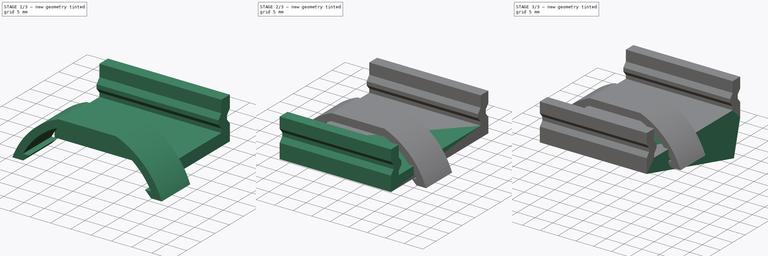
[diagram: build sequence overview — one tinted view per stage of 3, left to right]
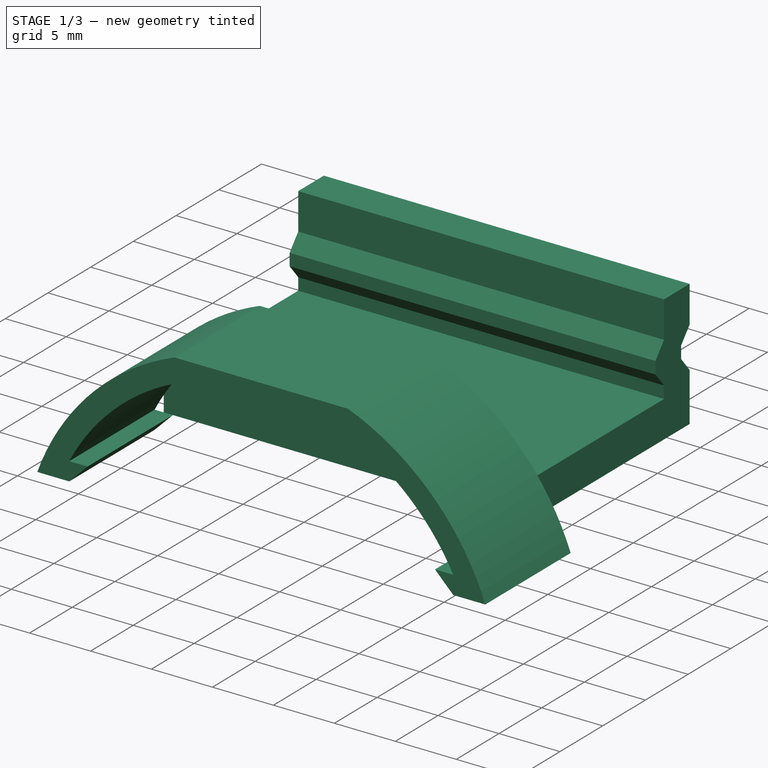
[diagram: stage 1 of 3 — iso view after this stage's code; geometry added in this stage tinted green]
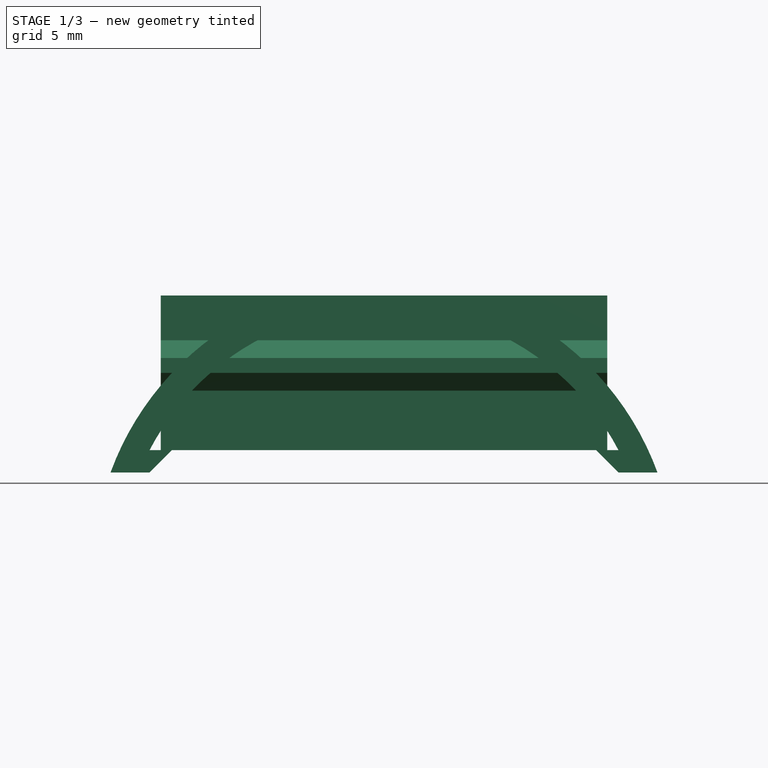
[diagram: stage 1 of 3 — front view after this stage's code; geometry added in this stage tinted green]
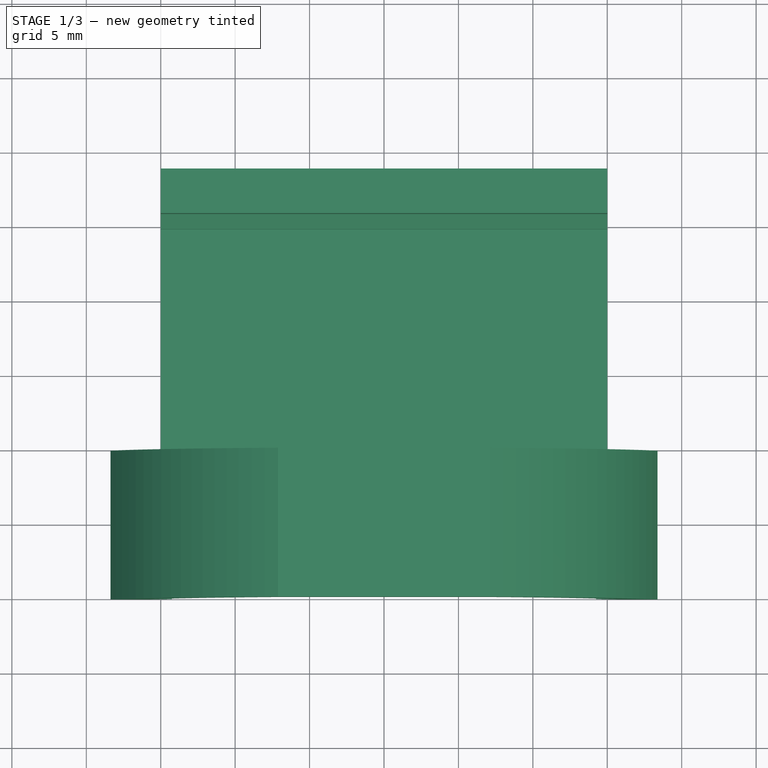
[diagram: stage 1 of 3 — top view after this stage's code; geometry added in this stage tinted green]
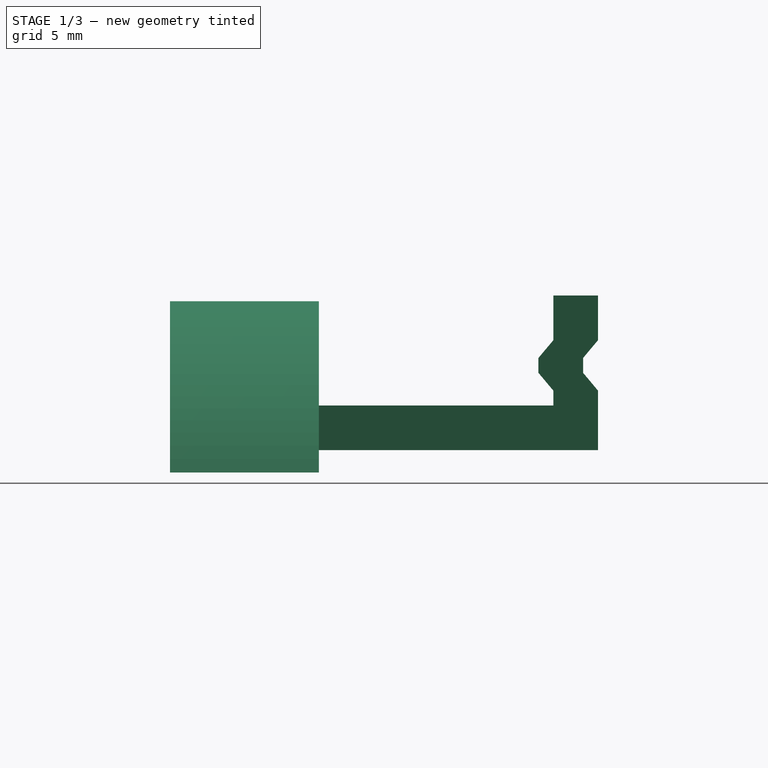
[diagram: stage 1 of 3 — right view after this stage's code; geometry added in this stage tinted green]
FCSTD DOCUMENT  (FreeCAD 1.1R44874 (Git))
Label: sauna_led_strip_clips
License: All rights reserved
LicenseURL: https://en.wikipedia.org/wiki/All_rights_reserved
objects: Sketcher::SketchObject×4, PartDesign::Pad×3, App::Point×2, PartDesign::Body×2, PartDesign::Mirrored×1, Part::DatumPlane×1, PartDesign::Hole×1, Spreadsheet::Sheet×1
note: 24 computed .brp shape members not serialized (recipe doc carries the construction recipe); baked Part::Feature solids carry a one-line shape summary decoded from their .brp

FEATURE [App::Point] Origin001
  Role = Origin
FEATURE [Sketcher::SketchObject] Sketch
  ArcFitTolerance = 1e-06
  AttachmentSupport = -> [Origin]
  ExternalTypes = [0]
  FullyConstrained = true
  MakeInternals = false
  MapMode = 5
  Placement = pos=(0,0,0) rot=(0.57735,0.57735,0.57735;2.0944rad)
  _ExternalGeoVersion = 1
  expr: Constraints[10] = <<config>>.p_width / 2
  sketch-geometry (18):
    g0: LineSegment StartX=0 StartY=0 StartZ=0 EndX=18.75 EndY=0 EndZ=0
    g1: LineSegment StartX=18.75 StartY=0 StartZ=0 EndX=18.75 EndY=4 EndZ=0
    g2: LineSegment StartX=15.75 StartY=4 StartZ=0 EndX=15.75 EndY=3 EndZ=0
    g3: LineSegment StartX=15.75 StartY=3 StartZ=0 EndX=0 EndY=3 EndZ=0
    g4: LineSegment StartX=0 StartY=3 StartZ=0 EndX=0 EndY=0 EndZ=0
    g5: LineSegment StartX=15.75 StartY=4 StartZ=0 EndX=14.75 EndY=5.19175 EndZ=0
    g6: LineSegment StartX=14.75 StartY=5.19175 StartZ=0 EndX=14.75 EndY=6.19175 EndZ=0
    g7: LineSegment StartX=14.75 StartY=6.19175 StartZ=0 EndX=15.75 EndY=7.38351 EndZ=0
    g8: LineSegment [constr] StartX=15.75 StartY=7.38351 StartZ=0 EndX=15.75 EndY=4 EndZ=0
    g9: LineSegment StartX=15.75 StartY=7.38351 StartZ=0 EndX=15.75 EndY=10.3835 EndZ=0
    g10: LineSegment StartX=15.75 StartY=10.3835 StartZ=0 EndX=18.75 EndY=10.3835 EndZ=0
    g11: LineSegment StartX=18.75 StartY=10.3835 StartZ=0 EndX=18.75 EndY=7.38351 EndZ=0
    g12: LineSegment StartX=18.75 StartY=7.38351 StartZ=0 EndX=17.75 EndY=6.19175 EndZ=0
    g13: LineSegment StartX=17.75 StartY=6.19175 StartZ=0 EndX=17.75 EndY=5.19175 EndZ=0
    g14: LineSegment StartX=17.75 StartY=5.19175 StartZ=0 EndX=18.75 EndY=4 EndZ=0
    g15: LineSegment [constr] StartX=18.75 StartY=7.38351 StartZ=0 EndX=18.75 EndY=4 EndZ=0
    g16: LineSegment [constr] StartX=15.75 StartY=4 StartZ=0 EndX=18.75 EndY=4 EndZ=0
    g17: LineSegment [constr] StartX=18.75 StartY=7.38351 StartZ=0 EndX=15.75 EndY=7.38351 EndZ=0
  constraints (49):
    c: Coincident(g0,g-1)
    c: PointOnObject(g0,g-1)
    c: Coincident(g0,g1)
    c: Vertical(g1)
    c: Vertical(g2)
    c: Coincident(g2,g3)
    c: PointOnObject(g3,g-2)
    c: Horizontal(g3)
    c: Coincident(g3,g4)
    c: Coincident(g4,g0)
    c: DistanceX(g3,g3) = 15.75
    c: DistanceY(g2,g2) = 1
    c: DistanceX(g2,g0) = 3
    c: DistanceY(g0,g2) = 3
    c: Coincident(g2,g5)
    c: Coincident(g5,g6)
    c: Vertical(g6)
    c: Coincident(g6,g7)
    c: Coincident(g8,g7)
    c: Coincident(g8,g2)
    c: Vertical(g8)
    c: Equal(g7,g5)
    c: DistanceX(g5,g2) = 1
    c: DistanceY(g6,g6) = 1
    c: Angle(g8,g5) = 0.698132
    c: Coincident(g7,g9)
    c: Vertical(g9)
    c: Coincident(g9,g10)
    c: Horizontal(g10)
    c: Coincident(g10,g11)
    c: Vertical(g11)
    c: Coincident(g11,g12)
    c: Coincident(g12,g13)
    c: Vertical(g13)
    c: Coincident(g13,g14)
    c: Coincident(g1,g14)
    c: Parallel(g12,g7)
    c: Parallel(g14,g5)
    c: Coincident(g15,g11)
    c: Coincident(g15,g1)
    c: Vertical(g15)
    c: DistanceX(g6,g12) = 3
    c: Coincident(g16,g2)
    c: Coincident(g16,g1)
    c: Coincident(g17,g11)
    c: Coincident(g17,g7)
    c: Horizontal(g16)
    c: Horizontal(g17)
    c: DistanceY(g11,g11) = 3
FEATURE [PartDesign::Pad] Pad
  Direction = (1,0,0)
  Length = 30
  Length2 = 10
  Profile = -> Sketch
  ReferenceAxis = -> Sketch [N_Axis]
  Refine = true
  SideType = 2
  Suppressed = false
  Type = 0
  Type2 = 0
FEATURE [PartDesign::Body] Body
  AllowCompound = true
  Group = -> [Sketch,Pad,Mirrored,Sketch001,Pad001,DatumPlane,Sketch002,Hole]
  Origin = -> Origin
  Tip = -> Hole
FEATURE [Spreadsheet::Sheet] Spreadsheet  label="config"
  cells = A1='profile width; B1(p_width)==31.5 mm
FEATURE [App::Point] Origin003
  Role = Origin
FEATURE [Sketcher::SketchObject] Sketch003
  ArcFitTolerance = 1e-06
  AttachmentSupport = -> [Origin002]
  ExternalTypes = [0]
  FullyConstrained = true
  MakeInternals = false
  MapMode = 5
  Placement = pos=(0,0,0) rot=(1,0,0;1.5708rad)
  _ExternalGeoVersion = 1
  expr: Constraints[23] = 90 + 45
  sketch-geometry (13):
    g0: ArcOfCircle CenterX=5.1e-15 CenterY=-8.21875 CenterZ=0 NormalX=0 NormalY=0 NormalZ=1 AngleXU=0 Radius=17.7654 StartAngle=0.480955 EndAngle=1.15043
    g1: LineSegment StartX=-7.25 StartY=8 StartZ=0 EndX=7.25 EndY=8 EndZ=0
    g2: LineSegment StartX=-15.75 StartY=3.6e-15 StartZ=0 EndX=-14.25 EndY=0 EndZ=0
    g3: LineSegment StartX=15.75 StartY=-1.8e-15 StartZ=0 EndX=14.25 EndY=0 EndZ=0
    g4: LineSegment StartX=-14.25 StartY=0 StartZ=0 EndX=-15.75 EndY=-1.5 EndZ=0
    g5: LineSegment StartX=14.25 StartY=0 StartZ=0 EndX=15.75 EndY=-1.5 EndZ=0
    g6: ArcOfCircle CenterX=5.1e-15 CenterY=-8.21875 CenterZ=0 NormalX=0 NormalY=0 NormalZ=1 AngleXU=0 Radius=19.5604 StartAngle=0.350627 EndAngle=1.19826
    g7: LineSegment StartX=-15.75 StartY=-1.5 StartZ=0 EndX=-18.3703 EndY=-1.5 EndZ=0
    g8: LineSegment StartX=15.75 StartY=-1.5 StartZ=0 EndX=18.3703 EndY=-1.5 EndZ=0
    g9: GeomPoint X=-17.75 Y=0 Z=0
    g10: ArcOfCircle CenterX=5.1e-15 CenterY=-8.21875 CenterZ=0 NormalX=0 NormalY=0 NormalZ=1 AngleXU=0 Radius=17.7654 StartAngle=1.99116 EndAngle=2.66064
    g11: LineSegment StartX=-7.11952 StartY=10 StartZ=0 EndX=7.11952 EndY=10 EndZ=0
    g12: ArcOfCircle CenterX=5.1e-15 CenterY=-8.21875 CenterZ=0 NormalX=0 NormalY=0 NormalZ=1 AngleXU=0 Radius=19.5604 StartAngle=1.94333 EndAngle=2.79097
  constraints (34):
    c: PointOnObject(g10,g-1)
    c: PointOnObject(g0,g-1)
    c: DistanceX(g10,g0) = 31.5
    c: DistanceY(g-1,g1) = 8
    c: DistanceX(g1,g1) = 14.5
    c: Distance(g2) = 1.5
    c: Coincident(g3,g0)
    c: PointOnObject(g3,g-1)
    c: Coincident(g4,g2)
    c: Coincident(g5,g3)
    c: Symmetric(g2,g3,g-2)
    c: Coincident(g2,g10)
    c: Symmetric(g7,g8,g-2)
    c: Coincident(g6,g0)
    c: Coincident(g12,g7)
    c: Coincident(g6,g8)
    c: Coincident(g4,g7)
    c: Coincident(g5,g8)
    c: Symmetric(g4,g5,g-2)
    c: Horizontal(g7)
    c: PointOnObject(g9,g-1)
    c: DistanceX(g9,g10) = 2
    c: DistanceY(g12,g9) = 1.5
    c: Angle(g4,g-1) = 2.35619
    c: Coincident(g1,g10)
    c: Coincident(g1,g0)
    c: Coincident(g0,g10)
    c: Symmetric(g1,g0,g-2)
    c: DistanceY(g0,g11) = 2
    c: PointOnObject(g9,g12)
    c: Coincident(g11,g12)
    c: Coincident(g11,g6)
    c: Coincident(g6,g12)
    c: Symmetric(g11,g6,g-2)
FEATURE [PartDesign::Pad] Pad002
  Direction = (0,-1,2e-16)
  Length = 10
  Length2 = 10
  Profile = -> Sketch003
  ReferenceAxis = -> Sketch003 [N_Axis]
  Refine = true
  SideType = 0
  Suppressed = false
  Type = 0
  Type2 = 0
FEATURE [PartDesign::Body] Body001  label="StripClampBody"
  AllowCompound = true
  Group = -> [Sketch003,Pad002]
  Origin = -> Origin002
  Tip = -> Pad002
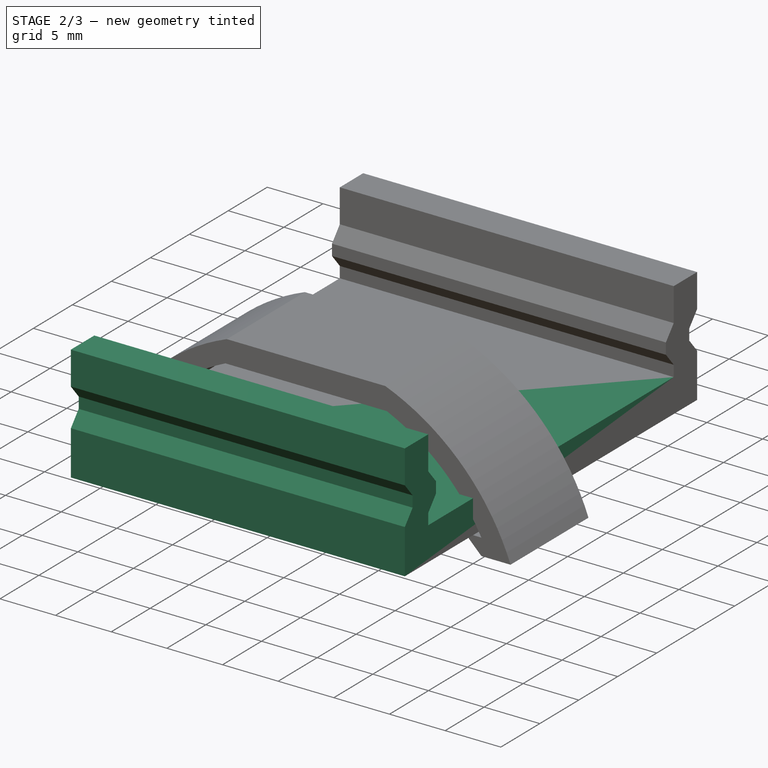
[diagram: stage 2 of 3 — iso view after this stage's code; geometry added in this stage tinted green]
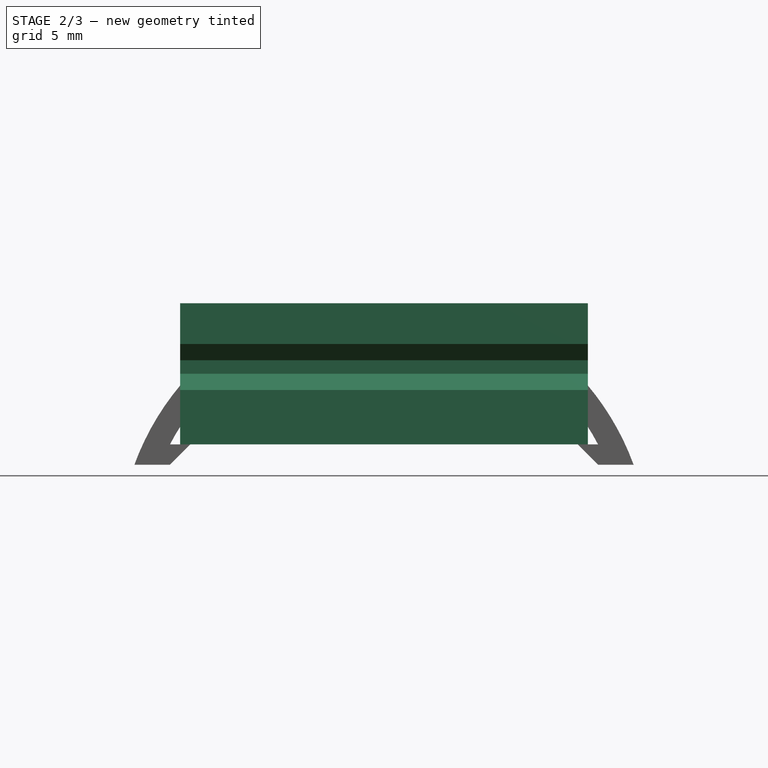
[diagram: stage 2 of 3 — front view after this stage's code; geometry added in this stage tinted green]
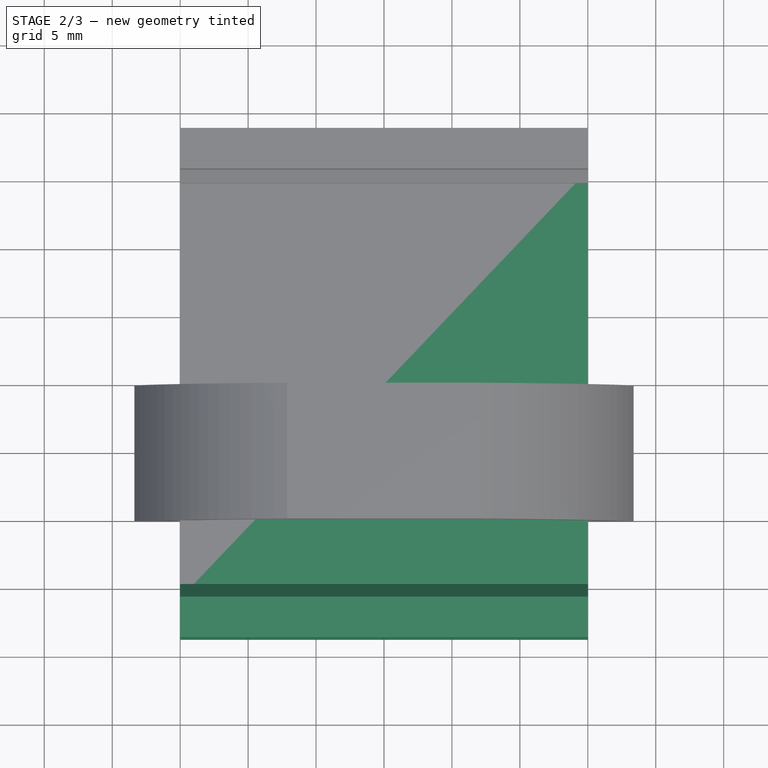
[diagram: stage 2 of 3 — top view after this stage's code; geometry added in this stage tinted green]
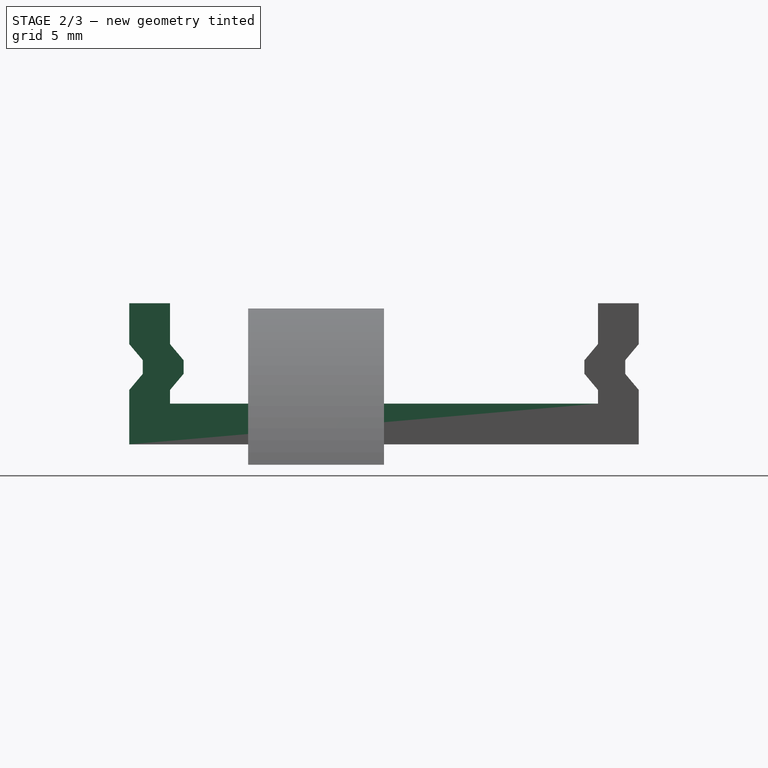
[diagram: stage 2 of 3 — right view after this stage's code; geometry added in this stage tinted green]
FEATURE [PartDesign::Mirrored] Mirrored
  BaseFeature = -> Pad
  MirrorPlane = -> XZ_Plane
  Refine = true
  Suppressed = false
  TransformMode = 1
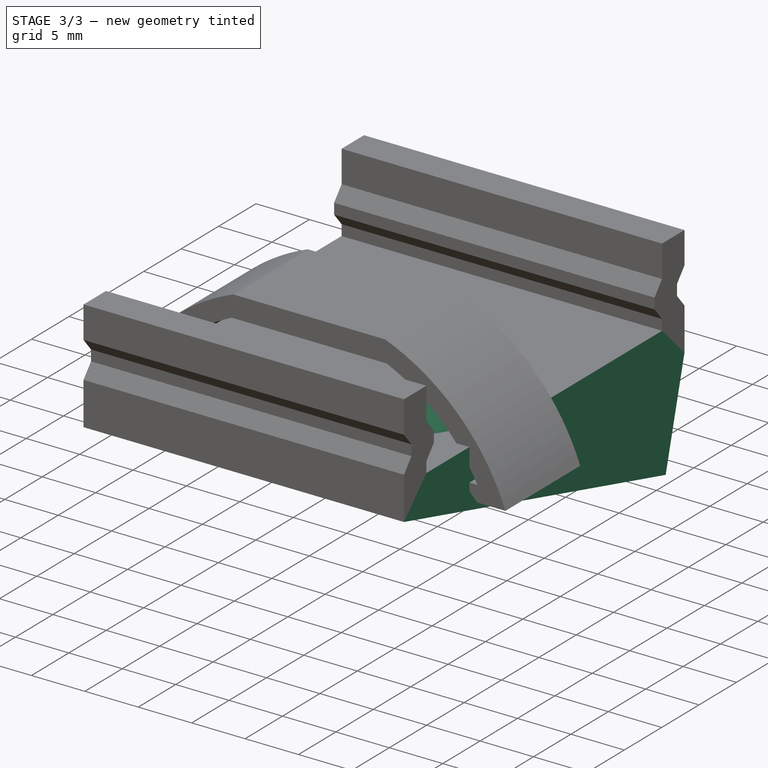
[diagram: stage 3 of 3 — iso view after this stage's code; geometry added in this stage tinted green]
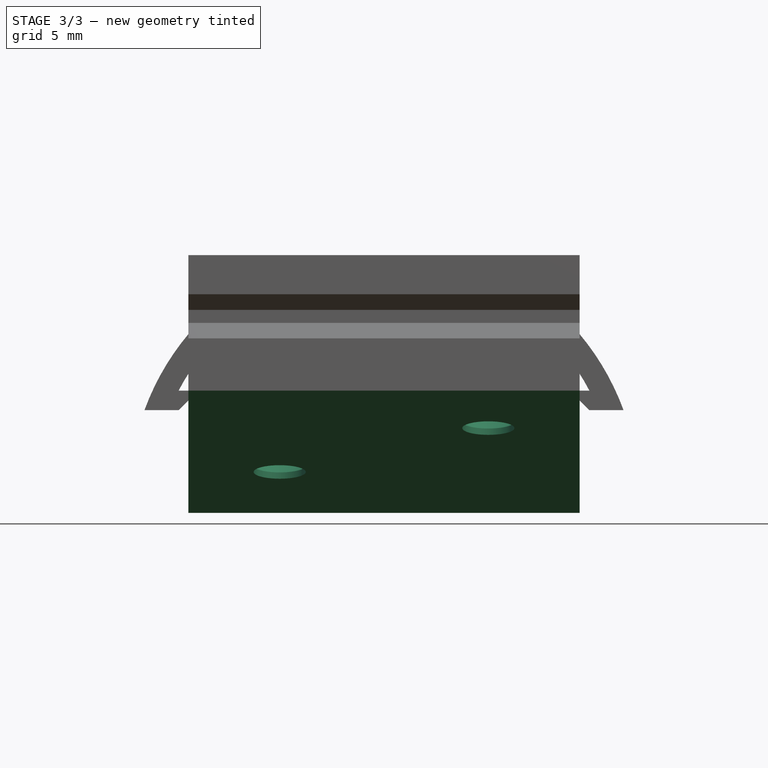
[diagram: stage 3 of 3 — front view after this stage's code; geometry added in this stage tinted green]
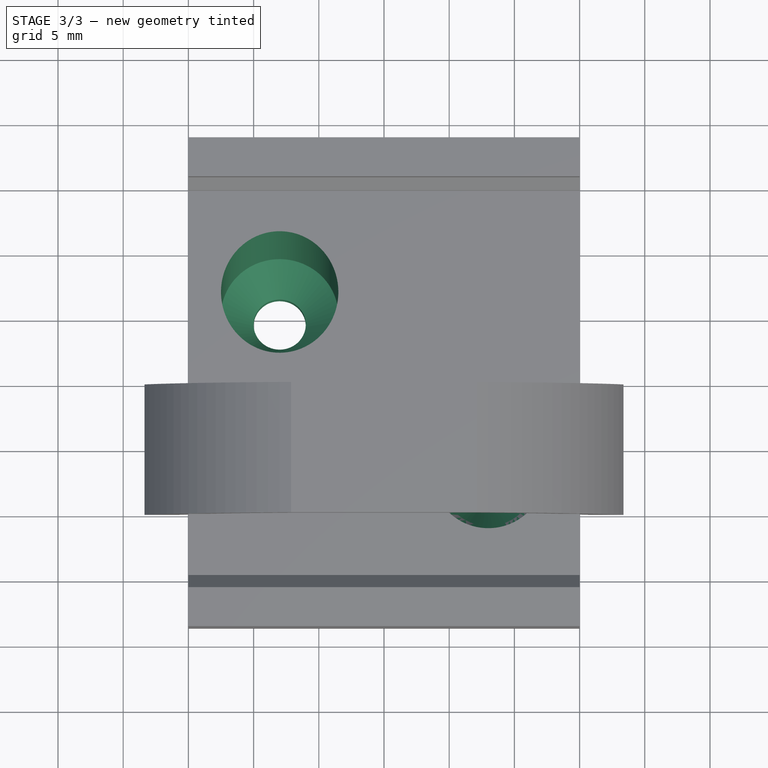
[diagram: stage 3 of 3 — top view after this stage's code; geometry added in this stage tinted green]
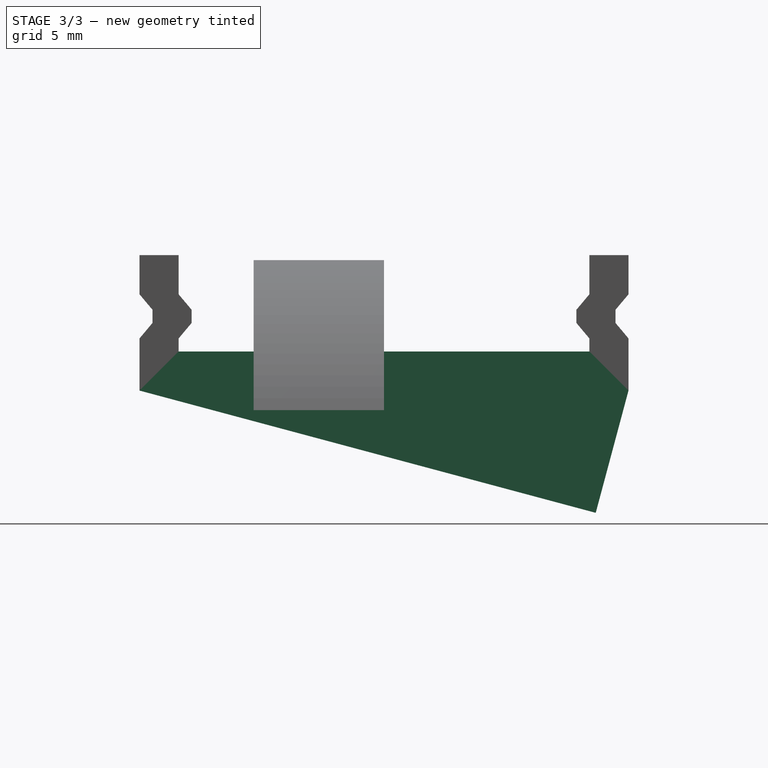
[diagram: stage 3 of 3 — right view after this stage's code; geometry added in this stage tinted green]
FEATURE [Sketcher::SketchObject] Sketch001
  ArcFitTolerance = 1e-06
  AttachmentSupport = -> [Origin]
  ExternalTypes = [0]
  FullyConstrained = true
  MakeInternals = false
  MapMode = 5
  Placement = pos=(0,0,0) rot=(0.57735,0.57735,0.57735;2.0944rad)
  _ExternalGeoVersion = 1
  expr: Constraints[5] = <<config>>.p_width + 2 * 3 mm
  sketch-geometry (3):
    g0: LineSegment StartX=18.75 StartY=0 StartZ=0 EndX=16.238 EndY=-9.375 EndZ=0
    g1: LineSegment StartX=16.238 StartY=-9.375 StartZ=0 EndX=-18.75 EndY=0 EndZ=0
    g2: LineSegment StartX=-18.75 StartY=0 StartZ=0 EndX=18.75 EndY=0 EndZ=0
  constraints (8):
    c: Coincident(g0,g1)
    c: PointOnObject(g0,g-1)
    c: Perpendicular(g0,g1)
    c: Coincident(g2,g1)
    c: Coincident(g2,g0)
    c: DistanceX(g2,g2) = 37.5
    c: Symmetric(g1,g0,g-2)
    c: Angle(g1,g2) = 0.261799
FEATURE [PartDesign::Pad] Pad001
  BaseFeature = -> Mirrored
  Direction = (1,0,0)
  Length = 30
  Length2 = 10
  Profile = -> Sketch001
  ReferenceAxis = -> Sketch001 [N_Axis]
  Refine = true
  SideType = 2
  Suppressed = false
  Type = 0
  Type2 = 0
FEATURE [Part::DatumPlane] DatumPlane
  AttachmentOffset = pos=(0,0,-11) rot=(0,0,1;0rad)
  AttachmentSupport = -> [Pad001]
  MapMode = 5
  Placement = pos=(0,1.591,5.93768) rot=(1,0,0;2.87979rad)
FEATURE [Sketcher::SketchObject] Sketch002
  ArcFitTolerance = 1e-06
  AttachmentSupport = -> [DatumPlane]
  ExternalTypes = [0]
  FullyConstrained = true
  MakeInternals = false
  MapMode = 5
  Placement = pos=(0,1.591,5.93768) rot=(1,0,0;2.87979rad)
  _ExternalGeoVersion = 1
  sketch-geometry (4):
    g0: Circle CenterX=8 CenterY=7 CenterZ=0 NormalX=0 NormalY=0 NormalZ=1 AngleXU=0 Radius=2.5
    g1: Circle CenterX=-8 CenterY=-6 CenterZ=0 NormalX=0 NormalY=0 NormalZ=1 AngleXU=0 Radius=2.5
    g2: LineSegment [constr] StartX=8 StartY=7 StartZ=0 EndX=8 EndY=0 EndZ=0
    g3: LineSegment [constr] StartX=-8 StartY=-6 StartZ=0 EndX=-8 EndY=0 EndZ=0
  constraints (11):
    c: Diameter(g0) = 5
    c: Equal(g1,g0)
    c: Coincident(g2,g0)
    c: PointOnObject(g2,g-1)
    c: Vertical(g2)
    c: Coincident(g3,g1)
    c: Vertical(g3)
    c: Symmetric(g2,g3,g-1)
    c: DistanceX(g3,g-1) = 8
    c: DistanceY(g1,g3) = 6
    c: DistanceY(g-1,g0) = 7
FEATURE [PartDesign::Hole] Hole
  BaseFeature = -> Pad001
  BaseProfileType = 7
  CustomThreadClearance = 0
  Depth = 25
  DepthType = 0
  Diameter = 4
  DrillForDepth = false
  DrillPoint = 1
  DrillPointAngle = 118
  HoleCutCountersinkAngle = 90
  HoleCutCustomValues = false
  HoleCutDepth = 8
  HoleCutDiameter = 9
  HoleCutType = 3
  ModelThread = false
  Profile = -> Sketch002
  Refine = true
  Reversed = true
  Suppressed = false
  Tapered = false
  TaperedAngle = 90
  ThreadClass = 0
  ThreadDepth = 25
  ThreadDepthType = 0
  ThreadDiameter = 4
  ThreadDirection = 0
  ThreadFit = 0
  ThreadSize = 0
  ThreadType = 0
  Threaded = false
  UseCustomThreadClearance = false
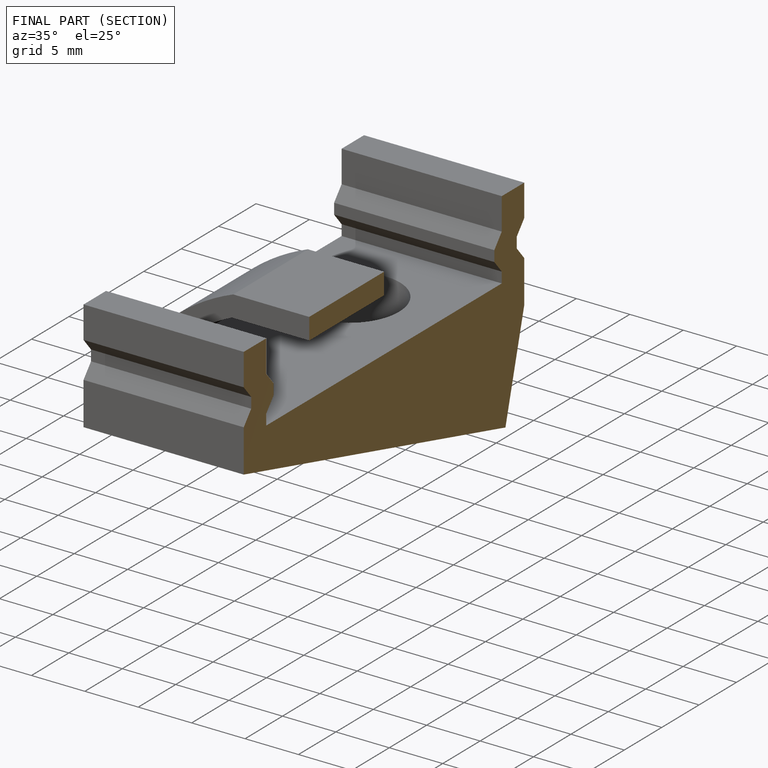
[diagram: finished part — half-section view (interior)]
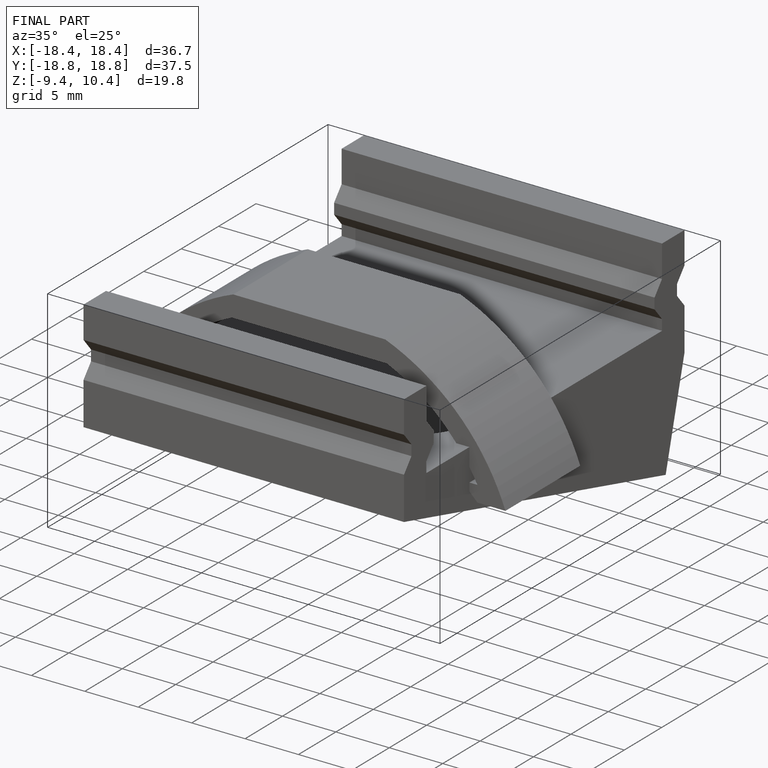
[diagram: finished part — iso view with bounding-box wireframe]
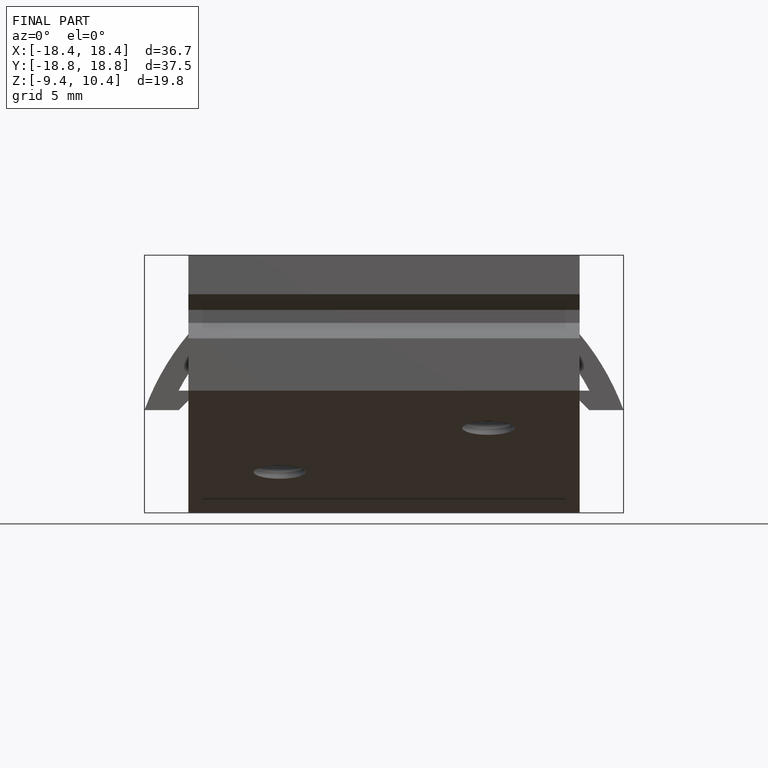
[diagram: finished part — front view with bounding-box wireframe]
